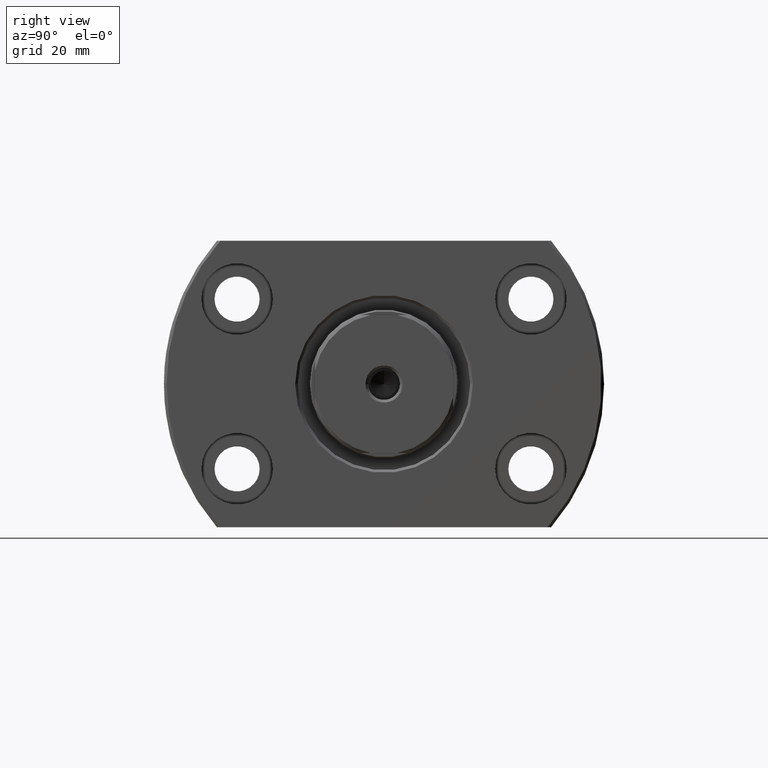
[diagram: clean part render]
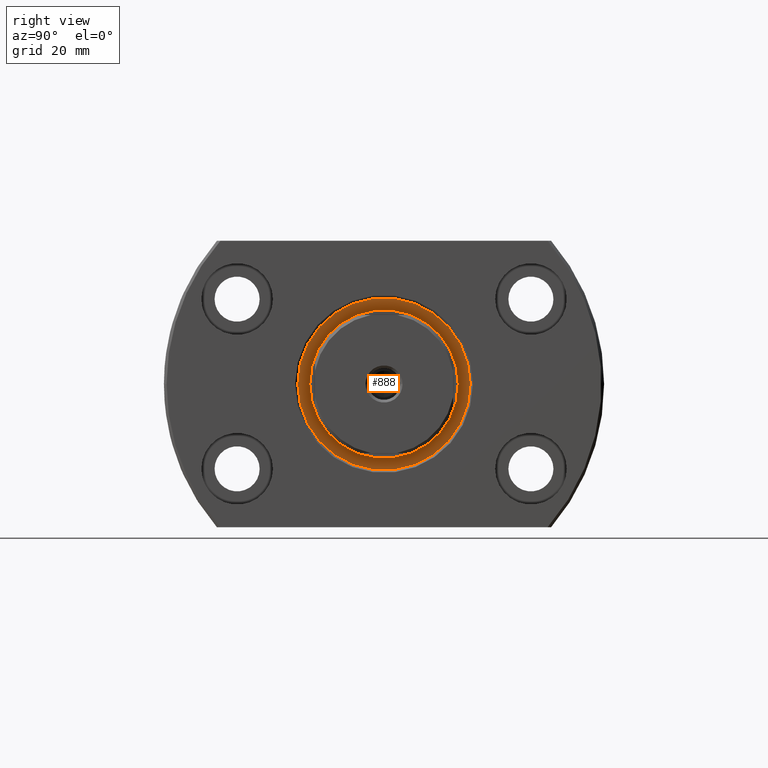
[diagram: same view with one face highlighted and labeled with its STEP entity id]
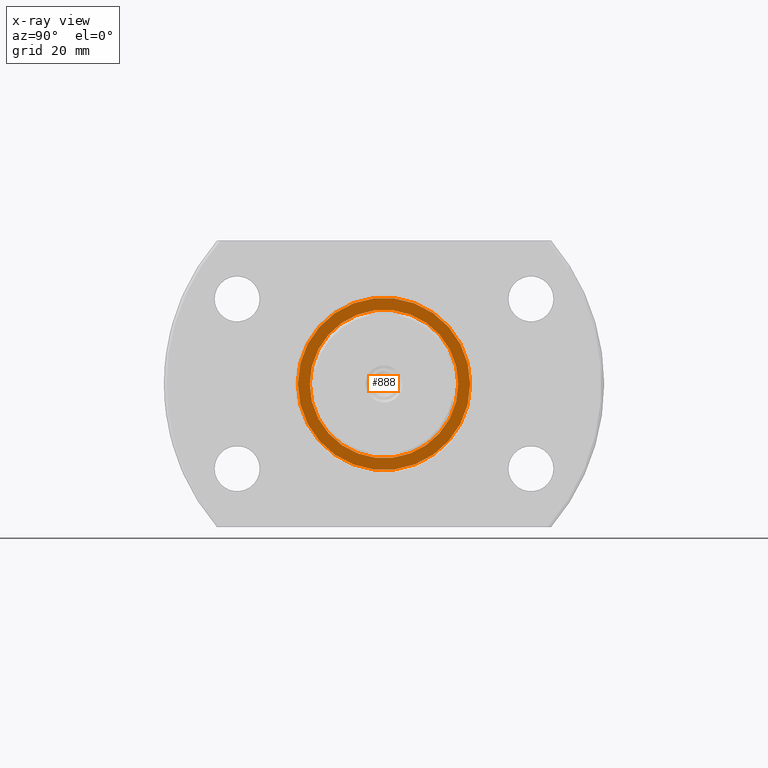
[diagram: x-ray of the same camera — body ghosted, the highlighted face saturated]
A machine part, right view. The second image highlights one B-rep face of the part: STEP entity #888.
The next image is the same camera in x-ray: the body ghosted, the highlighted face saturated — about 0% of this face is hidden behind the body in this view.
In plain terms, the highlighted planar face has unit normal (1, -0, 0).
Its self-contained STEP definition (entity closure, byte-faithful):
#95 = AXIS2_PLACEMENT_3D ( 'NONE', #3017, #971, #266 ) ;
#182 = CIRCLE ( 'NONE', #600, 16.25000000000000000 ) ;
#239 = CARTESIAN_POINT ( 'NONE',  ( 30.19999999999959428, -14.00000000000087574, 1.714505518806346506E-15 ) ) ;
#266 = DIRECTION ( 'NONE',  ( 2.874684617332994163E-14, 1.000000000000000000, 0.000000000000000000 ) ) ;
#322 = EDGE_LOOP ( 'NONE', ( #1803, #379 ) ) ;
#348 = CARTESIAN_POINT ( 'NONE',  ( 30.19999999999953033, -16.25000000000087041, 1.990051048614449313E-15 ) ) ;
#379 = ORIENTED_EDGE ( 'NONE', *, *, #1173, .T. ) ;
#441 = CARTESIAN_POINT ( 'NONE',  ( 30.20000000000046469, 16.24999999999912959, 0.000000000000000000 ) ) ;
#524 = DIRECTION ( 'NONE',  ( 2.882309775469156694E-14, 1.000000000000000000, 0.000000000000000000 ) ) ;
#569 = ORIENTED_EDGE ( 'NONE', *, *, #2968, .F. ) ;
#600 = AXIS2_PLACEMENT_3D ( 'NONE', #1711, #784, #524 ) ;
#617 = CIRCLE ( 'NONE', #1857, 14.00000000000000178 ) ;
#723 = CARTESIAN_POINT ( 'NONE',  ( 30.19999999999999929, -8.717127657232382087E-13, 0.000000000000000000 ) ) ;
#779 = ORIENTED_EDGE ( 'NONE', *, *, #2890, .F. ) ;
#784 = DIRECTION ( 'NONE',  ( 1.000000000000000000, -2.886466111666351885E-14, 0.000000000000000000 ) ) ;
#796 = DIRECTION ( 'NONE',  ( 2.874684617332994163E-14, 1.000000000000000000, 0.000000000000000000 ) ) ;
#888 = ADVANCED_FACE ( 'NONE', ( #1140, #3128 ), #1832, .T. ) ;
#971 = DIRECTION ( 'NONE',  ( 1.000000000000000000, -2.886466111666351885E-14, 0.000000000000000000 ) ) ;
#977 = VERTEX_POINT ( 'NONE', #239 ) ;
#1070 = DIRECTION ( 'NONE',  ( 2.886466111666351885E-14, 1.000000000000000000, 0.000000000000000000 ) ) ;
#1140 = FACE_BOUND ( 'NONE', #2348, .T. ) ;
#1173 = EDGE_CURVE ( 'NONE', #1686, #1893, #182, .T. ) ;
#1339 = CIRCLE ( 'NONE', #3103, 16.25000000000000000 ) ;
#1414 = DIRECTION ( 'NONE',  ( 2.882309775469156694E-14, 1.000000000000000000, 0.000000000000000000 ) ) ;
#1474 = DIRECTION ( 'NONE',  ( 1.000000000000000000, -2.886466111666351885E-14, 0.000000000000000000 ) ) ;
#1500 = CIRCLE ( 'NONE', #95, 14.00000000000000178 ) ;
#1686 = VERTEX_POINT ( 'NONE', #348 ) ;
#1711 = CARTESIAN_POINT ( 'NONE',  ( 30.19999999999999929, -8.717127657232382087E-13, 0.000000000000000000 ) ) ;
#1791 = AXIS2_PLACEMENT_3D ( 'NONE', #2124, #2886, #1070 ) ;
#1803 = ORIENTED_EDGE ( 'NONE', *, *, #1945, .T. ) ;
#1832 = PLANE ( 'NONE',  #1791 ) ;
#1857 = AXIS2_PLACEMENT_3D ( 'NONE', #2993, #2775, #796 ) ;
#1893 = VERTEX_POINT ( 'NONE', #441 ) ;
#1945 = EDGE_CURVE ( 'NONE', #1893, #1686, #1339, .T. ) ;
#2124 = CARTESIAN_POINT ( 'NONE',  ( 30.19999999999999929, -8.717127657232382087E-13, 0.000000000000000000 ) ) ;
#2280 = CARTESIAN_POINT ( 'NONE',  ( 30.20000000000040075, 13.99999999999912959, 0.000000000000000000 ) ) ;
#2348 = EDGE_LOOP ( 'NONE', ( #779, #569 ) ) ;
#2504 = VERTEX_POINT ( 'NONE', #2280 ) ;
#2775 = DIRECTION ( 'NONE',  ( 1.000000000000000000, -2.886466111666351885E-14, 0.000000000000000000 ) ) ;
#2886 = DIRECTION ( 'NONE',  ( 1.000000000000000000, -2.886466111666351885E-14, 0.000000000000000000 ) ) ;
#2890 = EDGE_CURVE ( 'NONE', #2504, #977, #1500, .T. ) ;
#2968 = EDGE_CURVE ( 'NONE', #977, #2504, #617, .T. ) ;
#2993 = CARTESIAN_POINT ( 'NONE',  ( 30.19999999999999929, -8.717127657232382087E-13, 0.000000000000000000 ) ) ;
#3017 = CARTESIAN_POINT ( 'NONE',  ( 30.19999999999999929, -8.717127657232382087E-13, 0.000000000000000000 ) ) ;
#3103 = AXIS2_PLACEMENT_3D ( 'NONE', #723, #1474, #1414 ) ;
#3128 = FACE_OUTER_BOUND ( 'NONE', #322, .T. ) ;